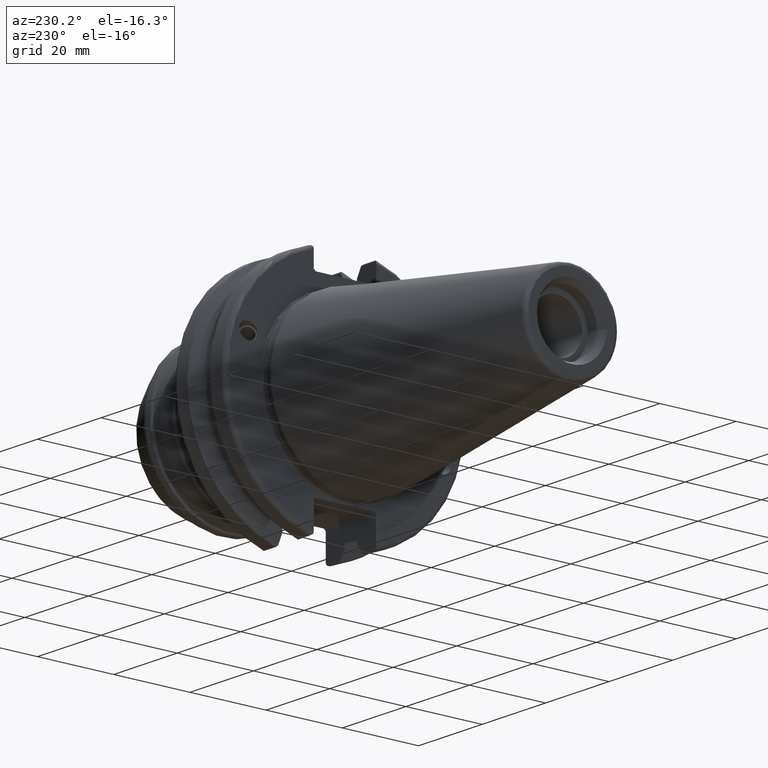
[diagram: clean part render]
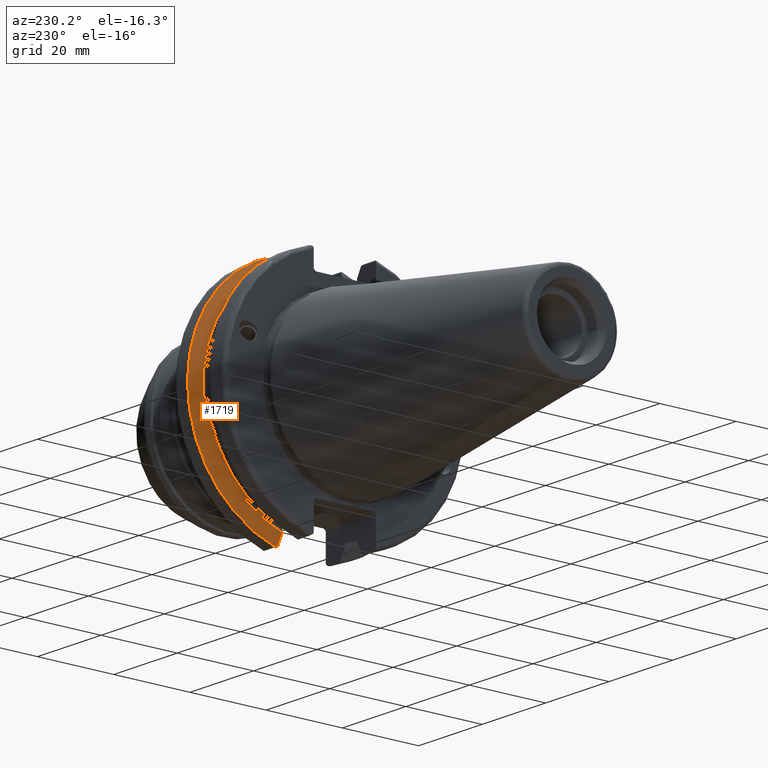
[diagram: same view with one face highlighted and labeled with its STEP entity id]
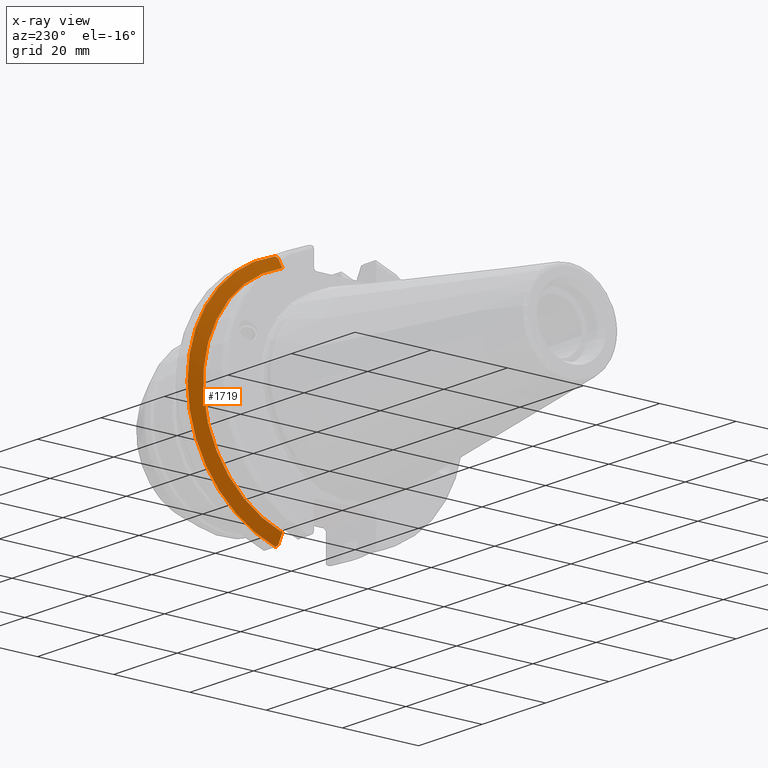
[diagram: x-ray of the same camera — body ghosted, the highlighted face saturated]
A machine part, auxiliary view. The second image highlights one B-rep face of the part: STEP entity #1719.
The next image is the same camera in x-ray: the body ghosted, the highlighted face saturated — about 0% of this face is hidden behind the body in this view.
In plain terms, the highlighted conical surface has half-angle 60 deg.
Its self-contained STEP definition (entity closure, byte-faithful):
#15=(
BOUNDED_CURVE()
B_SPLINE_CURVE(2,(#2984,#2985,#2986),.UNSPECIFIED.,.F.,.F.)
B_SPLINE_CURVE_WITH_KNOTS((3,3),(0.329353533631226,0.393258405001025),
 .UNSPECIFIED.)
CURVE()
GEOMETRIC_REPRESENTATION_ITEM()
RATIONAL_B_SPLINE_CURVE((1.00047644010577,1.00028444218285,1.))
REPRESENTATION_ITEM('')
);
#17=(
BOUNDED_CURVE()
B_SPLINE_CURVE(2,(#3009,#3010,#3011),.UNSPECIFIED.,.F.,.F.)
B_SPLINE_CURVE_WITH_KNOTS((3,3),(0.0550586467393769,0.331607789535852),
 .UNSPECIFIED.)
CURVE()
GEOMETRIC_REPRESENTATION_ITEM()
RATIONAL_B_SPLINE_CURVE((1.00031614444922,1.00095203903643,1.))
REPRESENTATION_ITEM('')
);
#25=(
BOUNDED_CURVE()
B_SPLINE_CURVE(2,(#3194,#3195,#3196),.UNSPECIFIED.,.F.,.F.)
B_SPLINE_CURVE_WITH_KNOTS((3,3),(0.,0.276549142795274),.UNSPECIFIED.)
CURVE()
GEOMETRIC_REPRESENTATION_ITEM()
RATIONAL_B_SPLINE_CURVE((1.,1.00095203903599,1.00031614444907))
REPRESENTATION_ITEM('')
);
#29=(
BOUNDED_CURVE()
B_SPLINE_CURVE(2,(#3225,#3226,#3227),.UNSPECIFIED.,.F.,.F.)
B_SPLINE_CURVE_WITH_KNOTS((3,3),(0.,0.0639048713675655),.UNSPECIFIED.)
CURVE()
GEOMETRIC_REPRESENTATION_ITEM()
RATIONAL_B_SPLINE_CURVE((1.,1.00028444218286,1.00047644010578))
REPRESENTATION_ITEM('')
);
#133=CONICAL_SURFACE('',#1962,30.3546886482472,1.0471975511966);
#437=FACE_OUTER_BOUND('',#547,.T.);
#547=EDGE_LOOP('',(#1568,#1569,#1570,#1571,#1572,#1573));
#655=CIRCLE('',#1945,31.75);
#664=CIRCLE('',#1963,28.9593772964944);
#786=VERTEX_POINT('',#2981);
#787=VERTEX_POINT('',#2983);
#793=VERTEX_POINT('',#3007);
#825=VERTEX_POINT('',#3191);
#826=VERTEX_POINT('',#3193);
#833=VERTEX_POINT('',#3223);
#1005=EDGE_CURVE('',#786,#787,#15,.T.);
#1014=EDGE_CURVE('',#786,#793,#17,.T.);
#1065=EDGE_CURVE('',#826,#825,#25,.T.);
#1077=EDGE_CURVE('',#833,#825,#29,.T.);
#1078=EDGE_CURVE('',#787,#833,#655,.T.);
#1091=EDGE_CURVE('',#793,#826,#664,.T.);
#1568=ORIENTED_EDGE('',*,*,#1005,.F.);
#1569=ORIENTED_EDGE('',*,*,#1014,.T.);
#1570=ORIENTED_EDGE('',*,*,#1091,.T.);
#1571=ORIENTED_EDGE('',*,*,#1065,.T.);
#1572=ORIENTED_EDGE('',*,*,#1077,.F.);
#1573=ORIENTED_EDGE('',*,*,#1078,.F.);
#1719=ADVANCED_FACE('',(#437),#133,.T.);
#1945=AXIS2_PLACEMENT_3D('',#3229,#2450,#2451);
#1962=AXIS2_PLACEMENT_3D('',#3256,#2487,#2488);
#1963=AXIS2_PLACEMENT_3D('',#3257,#2489,#2490);
#2450=DIRECTION('center_axis',(1.,0.,0.));
#2451=DIRECTION('ref_axis',(0.,0.,-1.));
#2487=DIRECTION('center_axis',(1.,0.,0.));
#2488=DIRECTION('ref_axis',(0.,1.,0.));
#2489=DIRECTION('center_axis',(1.,0.,0.));
#2490=DIRECTION('ref_axis',(0.,0.,-1.));
#2981=CARTESIAN_POINT('',(14.3815146964874,8.19,-30.1755016258903));
#2983=CARTESIAN_POINT('',(14.6602667690756,8.67204822802685,-30.5427254764662));
#2984=CARTESIAN_POINT('Ctrl Pts',(14.3815146964874,8.19,-30.1755016258903));
#2985=CARTESIAN_POINT('Ctrl Pts',(14.5192085187884,8.42917748263464,-30.3577067892692));
#2986=CARTESIAN_POINT('Ctrl Pts',(14.6602667690756,8.67204822802686,-30.5427254764662));
#3007=CARTESIAN_POINT('',(13.0491,8.19,-27.7771386827498));
#3009=CARTESIAN_POINT('Ctrl Pts',(14.3815146964874,8.18999999999999,-30.1755016258903));
#3010=CARTESIAN_POINT('Ctrl Pts',(13.687736438474,8.19,-28.9303689539668));
#3011=CARTESIAN_POINT('Ctrl Pts',(13.0491,8.19,-27.7771386827498));
#3191=CARTESIAN_POINT('',(14.3815146964874,8.19,30.1755016258903));
#3193=CARTESIAN_POINT('',(13.0491,8.19,27.7771386827498));
#3194=CARTESIAN_POINT('Ctrl Pts',(13.0491,8.19,27.7771386827498));
#3195=CARTESIAN_POINT('Ctrl Pts',(13.687736438489,8.19,28.9303689539938));
#3196=CARTESIAN_POINT('Ctrl Pts',(14.3815146964874,8.19,30.1755016258903));
#3223=CARTESIAN_POINT('',(14.6602667690756,8.67204822802685,30.5427254764662));
#3225=CARTESIAN_POINT('Ctrl Pts',(14.6602667690756,8.67204822802687,30.5427254764662));
#3226=CARTESIAN_POINT('Ctrl Pts',(14.5192085187837,8.42917748262644,30.357706789263));
#3227=CARTESIAN_POINT('Ctrl Pts',(14.3815146964874,8.19,30.1755016258903));
#3229=CARTESIAN_POINT('Origin',(14.6602667690756,0.,0.));
#3256=CARTESIAN_POINT('Origin',(13.8546833845378,0.,0.));
#3257=CARTESIAN_POINT('Origin',(13.0491,0.,0.));